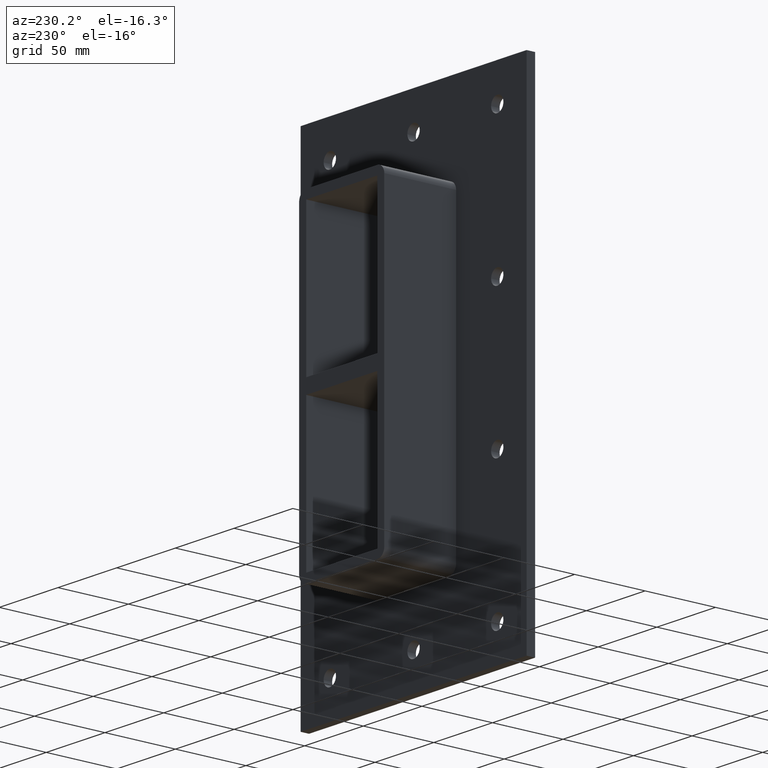
[diagram: clean part render]
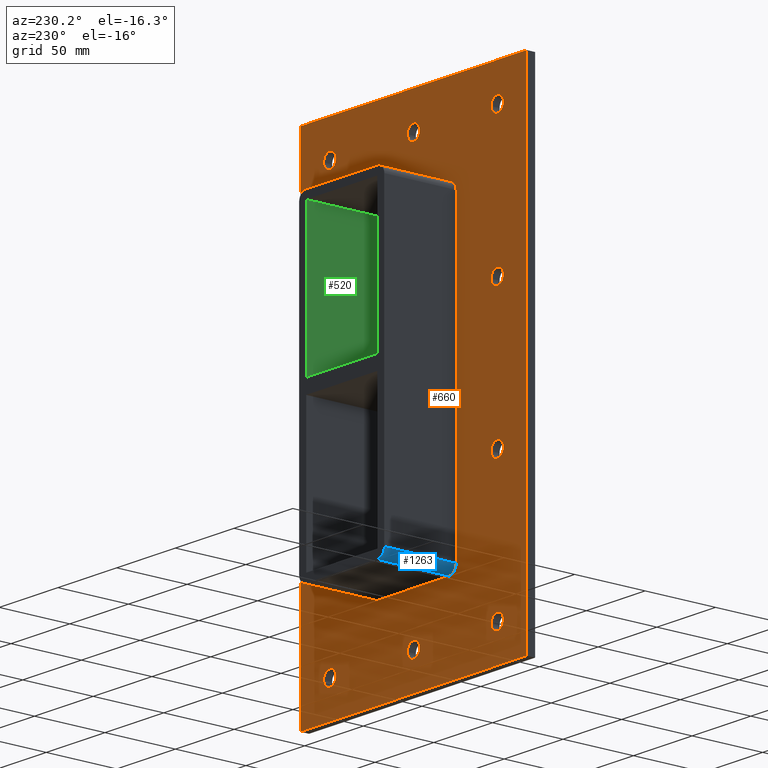
[diagram: same view with three faces highlighted in distinct colors, each labeled with its STEP entity id]
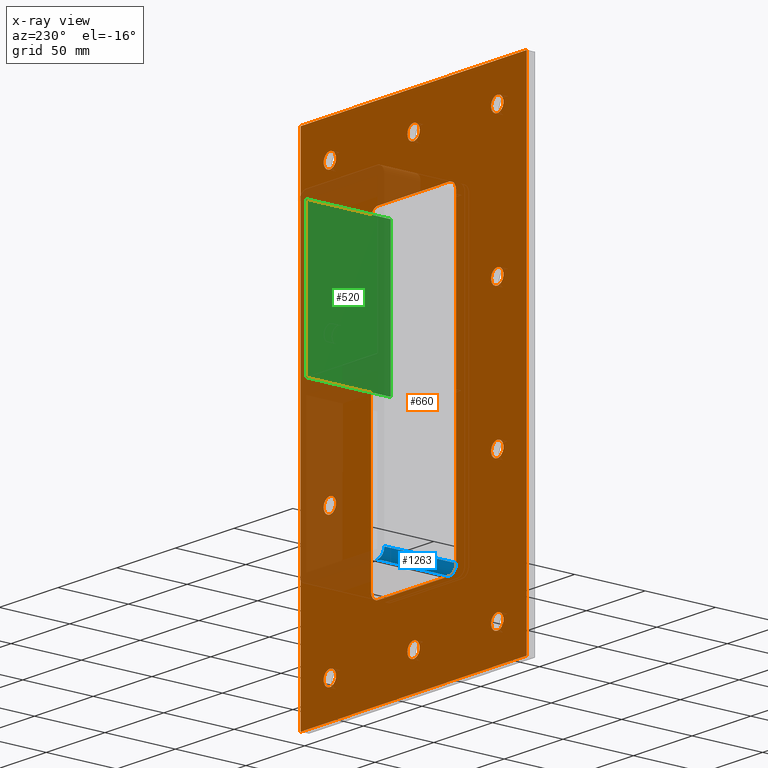
[diagram: x-ray of the same camera — body ghosted, the three highlighted faces saturated]
A machine part, auxiliary view with three faces highlighted in distinct colors.
The next image is the same camera in x-ray (body ghosted, the three faces saturated) — at least one of them is partly hidden behind the body in this view.
Their STEP definitions:

[orange] entity #660 — the highlighted planar face has unit normal (0, 1, 0).
#73=CARTESIAN_POINT('',(-76.500000000000071,6.000000000000014,-146.99999999999994));
#74=VERTEX_POINT('',#73);
#75=CARTESIAN_POINT('',(-71.250000000000057,6.000000000000014,-146.99999999999994));
#76=DIRECTION('',(0.0,-1.0,0.0));
#77=DIRECTION('',(1.0,0.0,0.0));
#78=AXIS2_PLACEMENT_3D('',#75,#76,#77);
#79=CIRCLE('',#78,5.25);
#80=EDGE_CURVE('',#74,#74,#79,.T.);
#101=CARTESIAN_POINT('',(66.099999999999937,6.000000000000014,-48.99999999999995));
#102=VERTEX_POINT('',#101);
#103=CARTESIAN_POINT('',(71.349999999999937,6.000000000000014,-48.99999999999995));
#104=DIRECTION('',(0.0,-1.0,0.0));
#105=DIRECTION('',(1.0,0.0,0.0));
#106=AXIS2_PLACEMENT_3D('',#103,#104,#105);
#107=CIRCLE('',#106,5.25);
#108=EDGE_CURVE('',#102,#102,#107,.T.);
#129=CARTESIAN_POINT('',(-76.500000000000071,6.000000000000014,-48.99999999999995));
#130=VERTEX_POINT('',#129);
#131=CARTESIAN_POINT('',(-71.250000000000057,6.000000000000014,-48.99999999999995));
#132=DIRECTION('',(0.0,-1.0,0.0));
#133=DIRECTION('',(1.0,0.0,0.0));
#134=AXIS2_PLACEMENT_3D('',#131,#132,#133);
#135=CIRCLE('',#134,5.25);
#136=EDGE_CURVE('',#130,#130,#135,.T.);
#157=CARTESIAN_POINT('',(66.099999999999937,6.000000000000014,49.000000000000057));
#158=VERTEX_POINT('',#157);
#159=CARTESIAN_POINT('',(71.349999999999937,6.000000000000014,49.000000000000057));
#160=DIRECTION('',(0.0,-1.0,0.0));
#161=DIRECTION('',(1.0,0.0,0.0));
#162=AXIS2_PLACEMENT_3D('',#159,#160,#161);
#163=CIRCLE('',#162,5.25);
#164=EDGE_CURVE('',#158,#158,#163,.T.);
#185=CARTESIAN_POINT('',(-76.500000000000071,6.000000000000014,49.000000000000057));
#186=VERTEX_POINT('',#185);
#187=CARTESIAN_POINT('',(-71.250000000000057,6.000000000000014,49.000000000000057));
#188=DIRECTION('',(0.0,-1.0,0.0));
#189=DIRECTION('',(1.0,0.0,0.0));
#190=AXIS2_PLACEMENT_3D('',#187,#188,#189);
#191=CIRCLE('',#190,5.25);
#192=EDGE_CURVE('',#186,#186,#191,.T.);
#213=CARTESIAN_POINT('',(-5.200000000000067,6.000000000000014,147.00000000000006));
#214=VERTEX_POINT('',#213);
#215=CARTESIAN_POINT('',(0.049999999999937,6.000000000000014,147.00000000000006));
#216=DIRECTION('',(0.0,-1.0,0.0));
#217=DIRECTION('',(1.0,0.0,0.0));
#218=AXIS2_PLACEMENT_3D('',#215,#216,#217);
#219=CIRCLE('',#218,5.25);
#220=EDGE_CURVE('',#214,#214,#219,.T.);
#241=CARTESIAN_POINT('',(-5.200000000000067,6.000000000000014,-146.99999999999994));
#242=VERTEX_POINT('',#241);
#243=CARTESIAN_POINT('',(0.049999999999937,6.000000000000014,-146.99999999999994));
#244=DIRECTION('',(0.0,-1.0,0.0));
#245=DIRECTION('',(1.0,0.0,0.0));
#246=AXIS2_PLACEMENT_3D('',#243,#244,#245);
#247=CIRCLE('',#246,5.25);
#248=EDGE_CURVE('',#242,#242,#247,.T.);
#269=CARTESIAN_POINT('',(66.099999999999937,6.000000000000014,-146.99999999999994));
#270=VERTEX_POINT('',#269);
#271=CARTESIAN_POINT('',(71.349999999999937,6.000000000000014,-146.99999999999994));
#272=DIRECTION('',(0.0,-1.0,0.0));
#273=DIRECTION('',(1.0,0.0,0.0));
#274=AXIS2_PLACEMENT_3D('',#271,#272,#273);
#275=CIRCLE('',#274,5.25);
#276=EDGE_CURVE('',#270,#270,#275,.T.);
#297=CARTESIAN_POINT('',(-76.500000000000071,6.000000000000014,147.00000000000006));
#298=VERTEX_POINT('',#297);
#299=CARTESIAN_POINT('',(-71.250000000000057,6.000000000000014,147.00000000000006));
#300=DIRECTION('',(0.0,-1.0,0.0));
#301=DIRECTION('',(1.0,0.0,0.0));
#302=AXIS2_PLACEMENT_3D('',#299,#300,#301);
#303=CIRCLE('',#302,5.25);
#304=EDGE_CURVE('',#298,#298,#303,.T.);
#325=CARTESIAN_POINT('',(66.099999999999937,6.000000000000014,147.00000000000006));
#326=VERTEX_POINT('',#325);
#327=CARTESIAN_POINT('',(71.349999999999937,6.000000000000014,147.00000000000006));
#328=DIRECTION('',(0.0,-1.0,0.0));
#329=DIRECTION('',(1.0,0.0,0.0));
#330=AXIS2_PLACEMENT_3D('',#327,#328,#329);
#331=CIRCLE('',#330,5.25);
#332=EDGE_CURVE('',#326,#326,#331,.T.);
#521=CARTESIAN_POINT('',(0.0,6.000000000000001,3.920236E-014));
#522=DIRECTION('',(0.0,1.0,0.0));
#523=DIRECTION('',(0.0,0.0,1.0));
#524=AXIS2_PLACEMENT_3D('',#521,#522,#523);
#525=PLANE('',#524);
#526=CARTESIAN_POINT('',(-96.25,6.000000000000001,172.00000000000003));
#527=VERTEX_POINT('',#526);
#528=CARTESIAN_POINT('',(96.25,6.000000000000001,172.00000000000003));
#529=VERTEX_POINT('',#528);
#530=CARTESIAN_POINT('',(-96.25,6.000000000000001,172.00000000000003));
#531=DIRECTION('',(1.0,0.0,0.0));
#532=VECTOR('',#531,192.5);
#533=LINE('',#530,#532);
#534=EDGE_CURVE('',#527,#529,#533,.T.);
#535=ORIENTED_EDGE('',*,*,#534,.T.);
#536=CARTESIAN_POINT('',(96.25,6.000000000000001,-171.99999999999994));
#537=VERTEX_POINT('',#536);
#538=CARTESIAN_POINT('',(96.25,6.000000000000001,172.00000000000003));
#539=DIRECTION('',(0.0,0.0,-1.0));
#540=VECTOR('',#539,344.0);
#541=LINE('',#538,#540);
#542=EDGE_CURVE('',#529,#537,#541,.T.);
#543=ORIENTED_EDGE('',*,*,#542,.T.);
#544=CARTESIAN_POINT('',(-96.25,6.000000000000001,-171.99999999999994));
#545=VERTEX_POINT('',#544);
#546=CARTESIAN_POINT('',(96.25,6.000000000000001,-171.99999999999994));
#547=DIRECTION('',(-1.0,0.0,0.0));
#548=VECTOR('',#547,192.5);
#549=LINE('',#546,#548);
#550=EDGE_CURVE('',#537,#545,#549,.T.);
#551=ORIENTED_EDGE('',*,*,#550,.T.);
#552=CARTESIAN_POINT('',(-96.25,6.000000000000001,-171.99999999999994));
#553=DIRECTION('',(0.0,0.0,1.0));
#554=VECTOR('',#553,344.0);
#555=LINE('',#552,#554);
#556=EDGE_CURVE('',#545,#527,#555,.T.);
#557=ORIENTED_EDGE('',*,*,#556,.T.);
#558=EDGE_LOOP('',(#535,#543,#551,#557));
#559=FACE_OUTER_BOUND('',#558,.T.);
#560=ORIENTED_EDGE('',*,*,#80,.T.);
#561=EDGE_LOOP('',(#560));
#562=FACE_BOUND('',#561,.T.);
#563=ORIENTED_EDGE('',*,*,#108,.T.);
#564=EDGE_LOOP('',(#563));
#565=FACE_BOUND('',#564,.T.);
#566=ORIENTED_EDGE('',*,*,#136,.T.);
#567=EDGE_LOOP('',(#566));
#568=FACE_BOUND('',#567,.T.);
#569=ORIENTED_EDGE('',*,*,#164,.T.);
#570=EDGE_LOOP('',(#569));
#571=FACE_BOUND('',#570,.T.);
#572=ORIENTED_EDGE('',*,*,#192,.T.);
#573=EDGE_LOOP('',(#572));
#574=FACE_BOUND('',#573,.T.);
#575=ORIENTED_EDGE('',*,*,#220,.T.);
#576=EDGE_LOOP('',(#575));
#577=FACE_BOUND('',#576,.T.);
#578=ORIENTED_EDGE('',*,*,#248,.T.);
#579=EDGE_LOOP('',(#578));
#580=FACE_BOUND('',#579,.T.);
#581=ORIENTED_EDGE('',*,*,#276,.T.);
#582=EDGE_LOOP('',(#581));
#583=FACE_BOUND('',#582,.T.);
#584=ORIENTED_EDGE('',*,*,#304,.T.);
#585=EDGE_LOOP('',(#584));
#586=FACE_BOUND('',#585,.T.);
#587=ORIENTED_EDGE('',*,*,#332,.T.);
#588=EDGE_LOOP('',(#587));
#589=FACE_BOUND('',#588,.T.);
#590=CARTESIAN_POINT('',(-30.249999999999993,6.000000000000001,-112.00000000000003));
#591=VERTEX_POINT('',#590);
#592=CARTESIAN_POINT('',(-36.25,6.000000000000001,-106.00000000000001));
#593=VERTEX_POINT('',#592);
#594=CARTESIAN_POINT('',(-30.249999999999993,6.000000000000001,-106.00000000000001));
#595=DIRECTION('',(0.0,1.0,0.0));
#596=DIRECTION('',(-0.707106781186547,0.0,-0.707106781186548));
#597=AXIS2_PLACEMENT_3D('',#594,#595,#596);
#598=CIRCLE('',#597,6.000000000000001);
#599=EDGE_CURVE('',#591,#593,#598,.T.);
#600=ORIENTED_EDGE('',*,*,#599,.F.);
#601=CARTESIAN_POINT('',(30.250000000000014,6.000000000000001,-112.00000000000003));
#602=VERTEX_POINT('',#601);
#603=CARTESIAN_POINT('',(30.250000000000011,6.000000000000001,-112.00000000000003));
#604=DIRECTION('',(-1.0,0.0,0.0));
#605=VECTOR('',#604,60.500000000000007);
#606=LINE('',#603,#605);
#607=EDGE_CURVE('',#602,#591,#606,.T.);
#608=ORIENTED_EDGE('',*,*,#607,.F.);
#609=CARTESIAN_POINT('',(36.250000000000007,6.000000000000001,-106.00000000000006));
#610=VERTEX_POINT('',#609);
#611=CARTESIAN_POINT('',(30.250000000000014,6.000000000000001,-106.00000000000006));
#612=DIRECTION('',(0.0,1.0,0.0));
#613=DIRECTION('',(0.707106781186548,0.0,-0.707106781186547));
#614=AXIS2_PLACEMENT_3D('',#611,#612,#613);
#615=CIRCLE('',#614,6.0);
#616=EDGE_CURVE('',#610,#602,#615,.T.);
#617=ORIENTED_EDGE('',*,*,#616,.F.);
#618=CARTESIAN_POINT('',(36.250000000000007,6.000000000000001,106.0));
#619=VERTEX_POINT('',#618);
#620=CARTESIAN_POINT('',(36.250000000000007,6.000000000000001,106.0));
#621=DIRECTION('',(0.0,0.0,-1.0));
#622=VECTOR('',#621,212.00000000000006);
#623=LINE('',#620,#622);
#624=EDGE_CURVE('',#619,#610,#623,.T.);
#625=ORIENTED_EDGE('',*,*,#624,.F.);
#626=CARTESIAN_POINT('',(30.250000000000004,6.000000000000001,112.0));
#627=VERTEX_POINT('',#626);
#628=CARTESIAN_POINT('',(30.250000000000004,6.000000000000001,106.0));
#629=DIRECTION('',(0.0,1.0,0.0));
#630=DIRECTION('',(0.707106781186549,0.0,0.707106781186546));
#631=AXIS2_PLACEMENT_3D('',#628,#629,#630);
#632=CIRCLE('',#631,6.000000000000001);
#633=EDGE_CURVE('',#627,#619,#632,.T.);
#634=ORIENTED_EDGE('',*,*,#633,.F.);
#635=CARTESIAN_POINT('',(-30.250000000000004,6.000000000000001,112.0));
#636=VERTEX_POINT('',#635);
#637=CARTESIAN_POINT('',(-30.250000000000004,6.000000000000001,112.0));
#638=DIRECTION('',(1.0,0.0,0.0));
#639=VECTOR('',#638,60.5);
#640=LINE('',#637,#639);
#641=EDGE_CURVE('',#636,#627,#640,.T.);
#642=ORIENTED_EDGE('',*,*,#641,.F.);
#643=CARTESIAN_POINT('',(-36.25,6.000000000000001,106.00000000000001));
#644=VERTEX_POINT('',#643);
#645=CARTESIAN_POINT('',(-30.250000000000004,6.000000000000001,106.00000000000001));
#646=DIRECTION('',(0.0,1.0,0.0));
#647=DIRECTION('',(-0.707106781186548,0.0,0.707106781186547));
#648=AXIS2_PLACEMENT_3D('',#645,#646,#647);
#649=CIRCLE('',#648,6.0);
#650=EDGE_CURVE('',#644,#636,#649,.T.);
#651=ORIENTED_EDGE('',*,*,#650,.F.);
#652=CARTESIAN_POINT('',(-36.25,6.000000000000001,-106.00000000000001));
#653=DIRECTION('',(0.0,0.0,1.0));
#654=VECTOR('',#653,212.00000000000006);
#655=LINE('',#652,#654);
#656=EDGE_CURVE('',#593,#644,#655,.T.);
#657=ORIENTED_EDGE('',*,*,#656,.F.);
#658=EDGE_LOOP('',(#600,#608,#617,#625,#634,#642,#651,#657));
#659=FACE_BOUND('',#658,.T.);
#660=ADVANCED_FACE('',(#559,#562,#565,#568,#571,#574,#577,#580,#583,#586,#589,#659),#525,.T.);

[blue] entity #1263 — the highlighted cylindrical surface (edge-blend (fillet) strip) has radius 6 mm, axis along (0, 1, 0).
#590=CARTESIAN_POINT('',(-30.249999999999993,6.000000000000001,-112.00000000000003));
#591=VERTEX_POINT('',#590);
#592=CARTESIAN_POINT('',(-36.25,6.000000000000001,-106.00000000000001));
#593=VERTEX_POINT('',#592);
#594=CARTESIAN_POINT('',(-30.249999999999993,6.000000000000001,-106.00000000000001));
#595=DIRECTION('',(0.0,1.0,0.0));
#596=DIRECTION('',(-0.707106781186547,0.0,-0.707106781186548));
#597=AXIS2_PLACEMENT_3D('',#594,#595,#596);
#598=CIRCLE('',#597,6.000000000000001);
#599=EDGE_CURVE('',#591,#593,#598,.T.);
#1141=CARTESIAN_POINT('',(-30.249999999999993,57.0,-112.00000000000003));
#1142=VERTEX_POINT('',#1141);
#1143=CARTESIAN_POINT('',(-30.249999999999993,57.0,-112.00000000000003));
#1144=DIRECTION('',(0.0,-1.0,0.0));
#1145=VECTOR('',#1144,51.0);
#1146=LINE('',#1143,#1145);
#1147=EDGE_CURVE('',#1142,#591,#1146,.T.);
#1239=CARTESIAN_POINT('',(-30.249999999999993,0.0,-106.00000000000001));
#1240=DIRECTION('',(0.0,1.0,0.0));
#1241=DIRECTION('',(-0.707106781186547,0.0,-0.707106781186548));
#1242=AXIS2_PLACEMENT_3D('',#1239,#1240,#1241);
#1243=CYLINDRICAL_SURFACE('',#1242,6.000000000000001);
#1244=ORIENTED_EDGE('',*,*,#599,.T.);
#1245=CARTESIAN_POINT('',(-36.25,57.0,-106.00000000000001));
#1246=VERTEX_POINT('',#1245);
#1247=CARTESIAN_POINT('',(-36.25,6.000000000000001,-106.00000000000001));
#1248=DIRECTION('',(0.0,1.0,0.0));
#1249=VECTOR('',#1248,51.0);
#1250=LINE('',#1247,#1249);
#1251=EDGE_CURVE('',#593,#1246,#1250,.T.);
#1252=ORIENTED_EDGE('',*,*,#1251,.T.);
#1253=CARTESIAN_POINT('',(-30.249999999999993,57.0,-106.00000000000001));
#1254=DIRECTION('',(0.0,-1.0,0.0));
#1255=DIRECTION('',(-0.707106781186547,0.0,-0.707106781186548));
#1256=AXIS2_PLACEMENT_3D('',#1253,#1254,#1255);
#1257=CIRCLE('',#1256,6.000000000000001);
#1258=EDGE_CURVE('',#1246,#1142,#1257,.T.);
#1259=ORIENTED_EDGE('',*,*,#1258,.T.);
#1260=ORIENTED_EDGE('',*,*,#1147,.T.);
#1261=EDGE_LOOP('',(#1244,#1252,#1259,#1260));
#1262=FACE_OUTER_BOUND('',#1261,.T.);
#1263=ADVANCED_FACE('',(#1262),#1243,.T.);

[green] entity #520 — the highlighted planar face has unit normal (1, 0, 0).
#395=CARTESIAN_POINT('',(30.249999999999897,-3.0,5.0));
#396=VERTEX_POINT('',#395);
#403=CARTESIAN_POINT('',(30.249999999999897,57.0,5.0));
#404=VERTEX_POINT('',#403);
#405=CARTESIAN_POINT('',(30.250000000000004,57.000000000000007,5.0));
#406=DIRECTION('',(0.0,-1.0,0.0));
#407=VECTOR('',#406,60.000000000000007);
#408=LINE('',#405,#407);
#409=EDGE_CURVE('',#404,#396,#408,.T.);
#490=CARTESIAN_POINT('',(30.250000000000004,0.0,106.00000000000001));
#491=DIRECTION('',(1.0,0.0,0.0));
#492=DIRECTION('',(0.0,0.0,-1.0));
#493=AXIS2_PLACEMENT_3D('',#490,#491,#492);
#494=PLANE('',#493);
#495=ORIENTED_EDGE('',*,*,#409,.T.);
#496=CARTESIAN_POINT('',(30.250000000000004,-3.0,106.00000000000001));
#497=VERTEX_POINT('',#496);
#498=CARTESIAN_POINT('',(30.250000000000004,-3.0,106.00000000000001));
#499=DIRECTION('',(0.0,0.0,-1.0));
#500=VECTOR('',#499,101.00000000000001);
#501=LINE('',#498,#500);
#502=EDGE_CURVE('',#497,#396,#501,.T.);
#503=ORIENTED_EDGE('',*,*,#502,.F.);
#504=CARTESIAN_POINT('',(30.250000000000004,57.0,106.00000000000001));
#505=VERTEX_POINT('',#504);
#506=CARTESIAN_POINT('',(30.250000000000004,-3.0,106.00000000000001));
#507=DIRECTION('',(0.0,1.0,0.0));
#508=VECTOR('',#507,60.0);
#509=LINE('',#506,#508);
#510=EDGE_CURVE('',#497,#505,#509,.T.);
#511=ORIENTED_EDGE('',*,*,#510,.T.);
#512=CARTESIAN_POINT('',(30.250000000000004,57.0,5.0));
#513=DIRECTION('',(0.0,0.0,1.0));
#514=VECTOR('',#513,101.00000000000001);
#515=LINE('',#512,#514);
#516=EDGE_CURVE('',#404,#505,#515,.T.);
#517=ORIENTED_EDGE('',*,*,#516,.F.);
#518=EDGE_LOOP('',(#495,#503,#511,#517));
#519=FACE_OUTER_BOUND('',#518,.T.);
#520=ADVANCED_FACE('',(#519),#494,.F.);